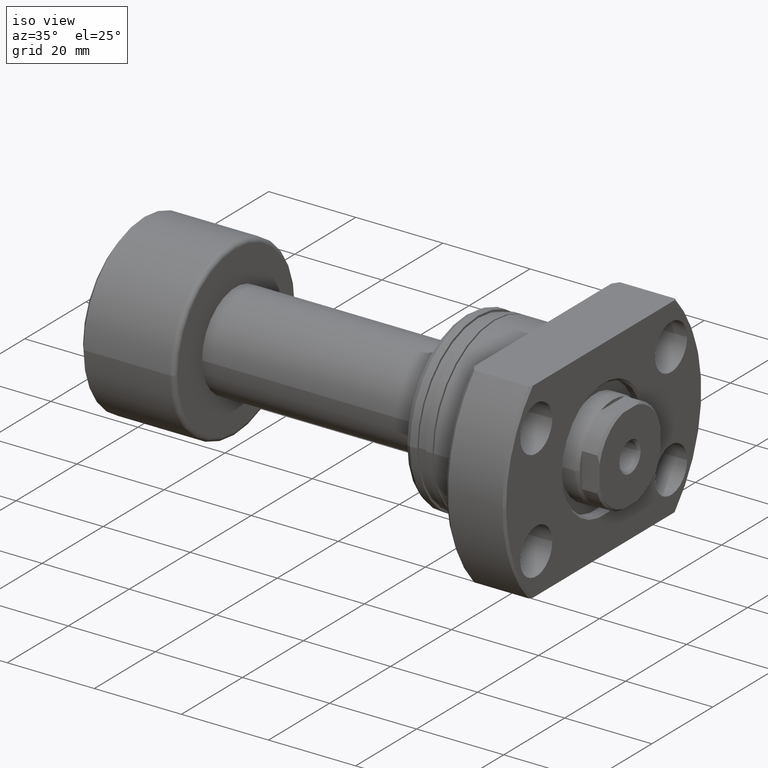
[diagram: clean part render]
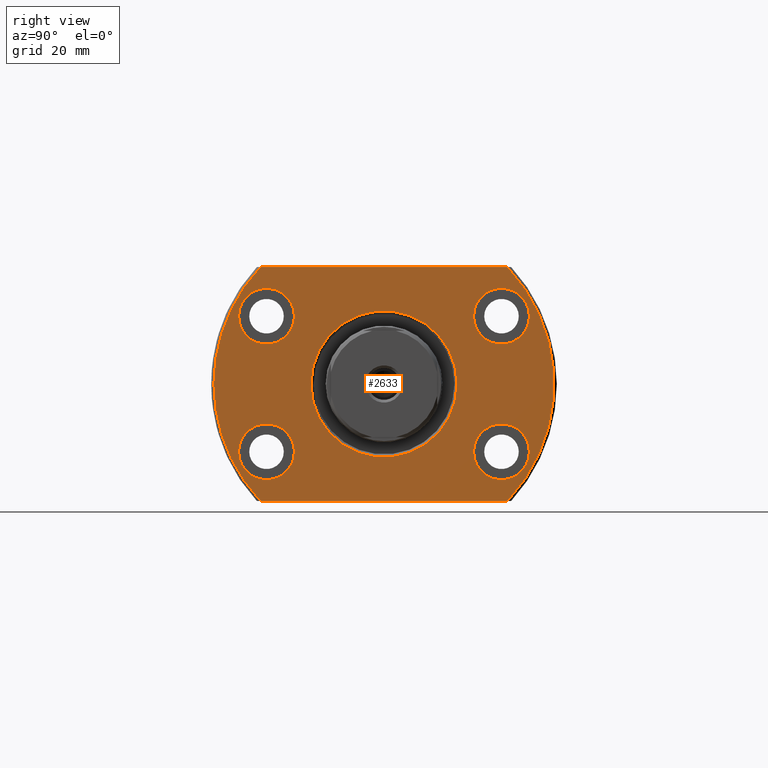
[diagram: tour spotlight — one face highlighted and labeled with its STEP entity id]
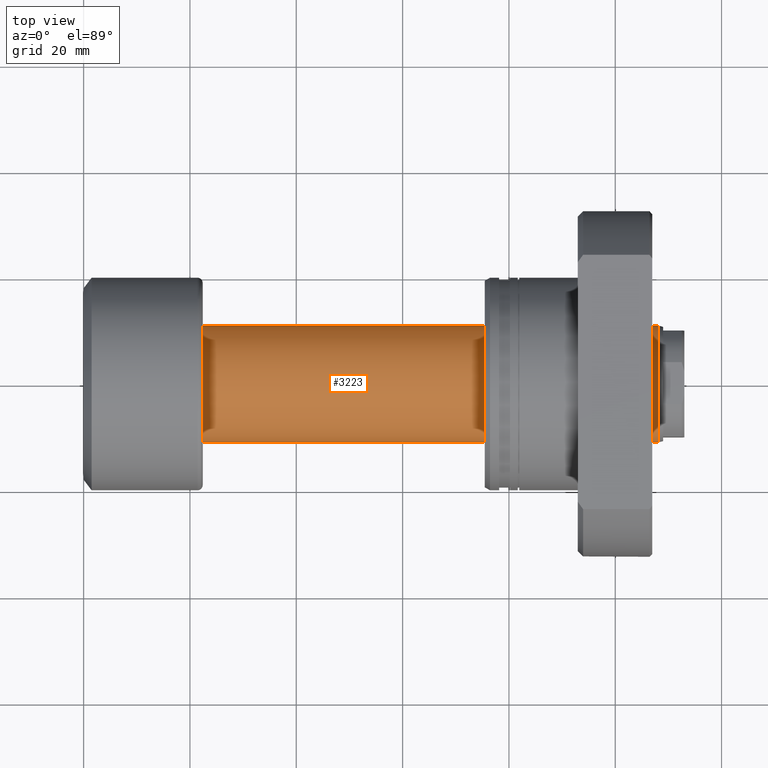
[diagram: tour spotlight — one face highlighted and labeled with its STEP entity id]
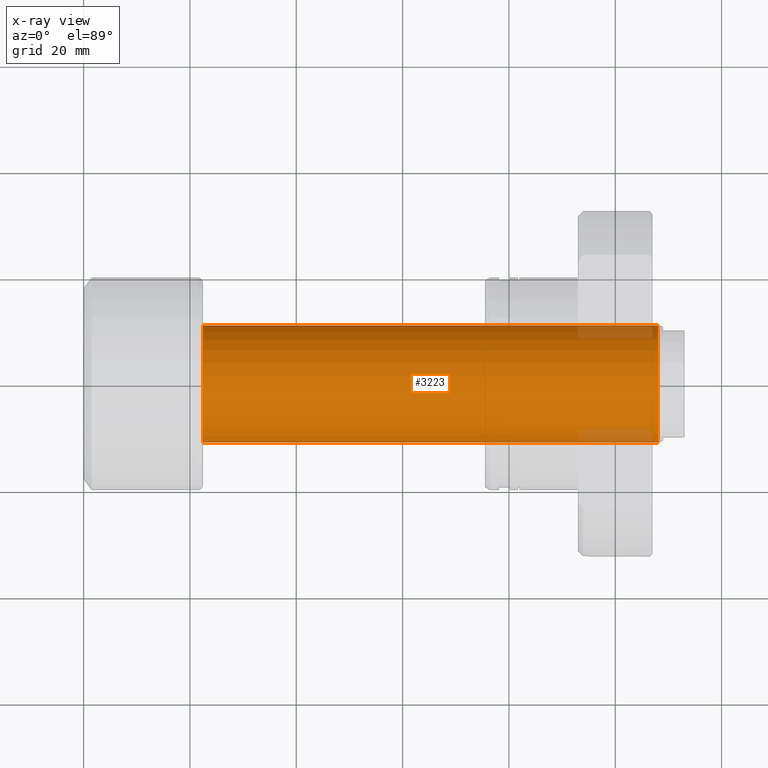
[diagram: x-ray of the same camera — body ghosted, this tour face saturated]
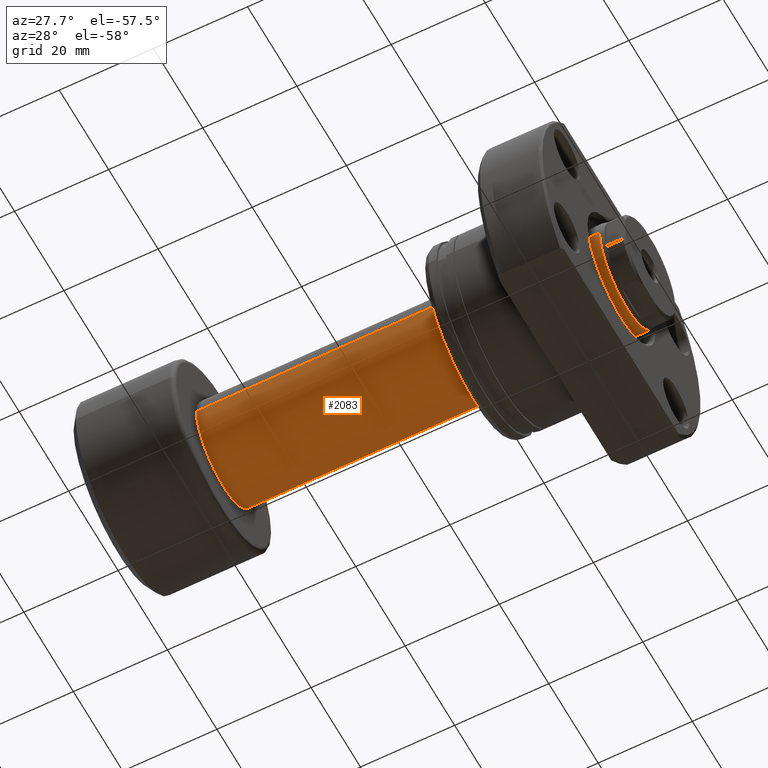
[diagram: tour spotlight — one face highlighted and labeled with its STEP entity id]
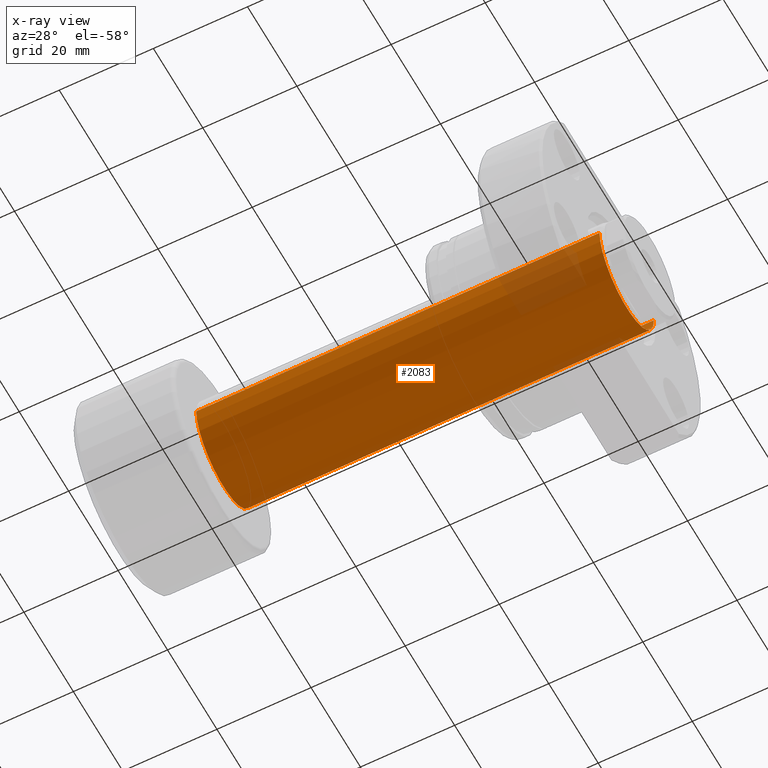
[diagram: x-ray of the same camera — body ghosted, this tour face saturated]
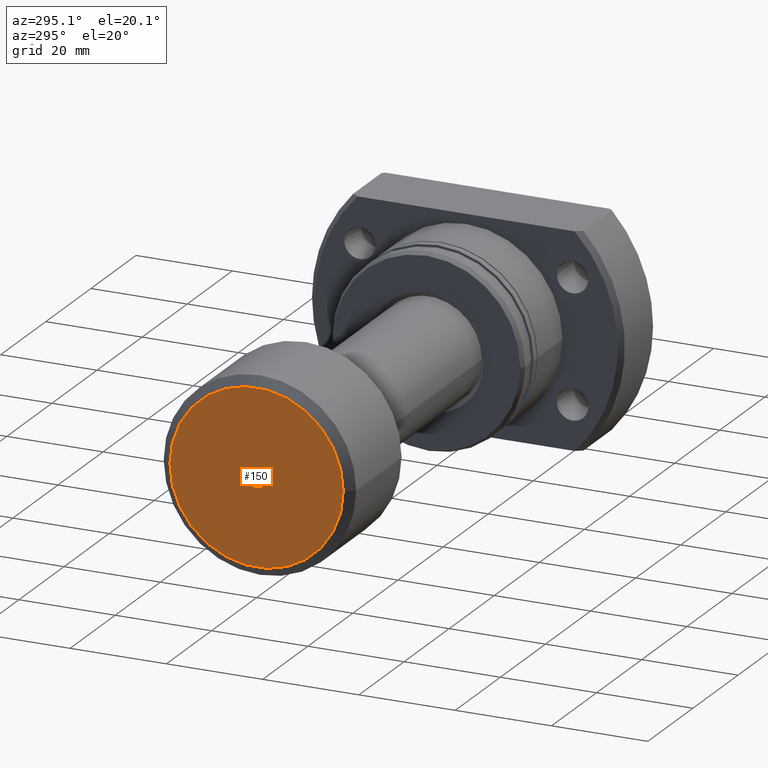
[diagram: tour spotlight — one face highlighted and labeled with its STEP entity id]
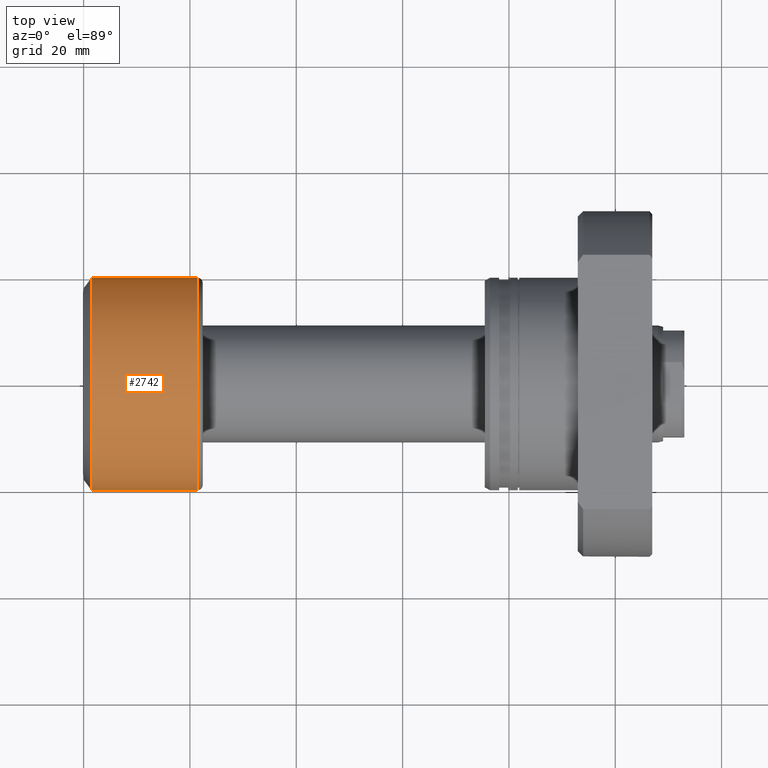
[diagram: tour spotlight — one face highlighted and labeled with its STEP entity id]
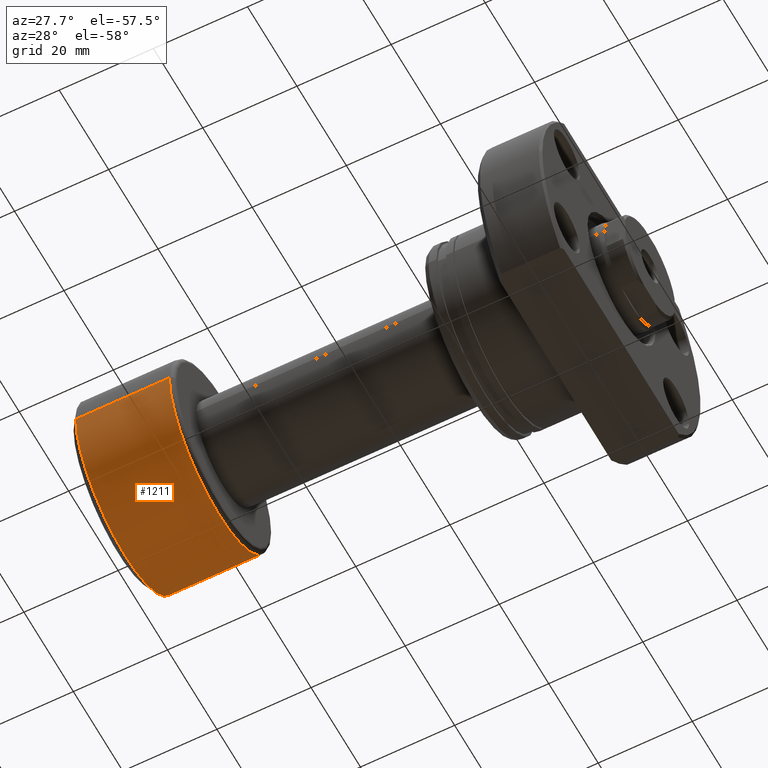
[diagram: tour spotlight — one face highlighted and labeled with its STEP entity id]
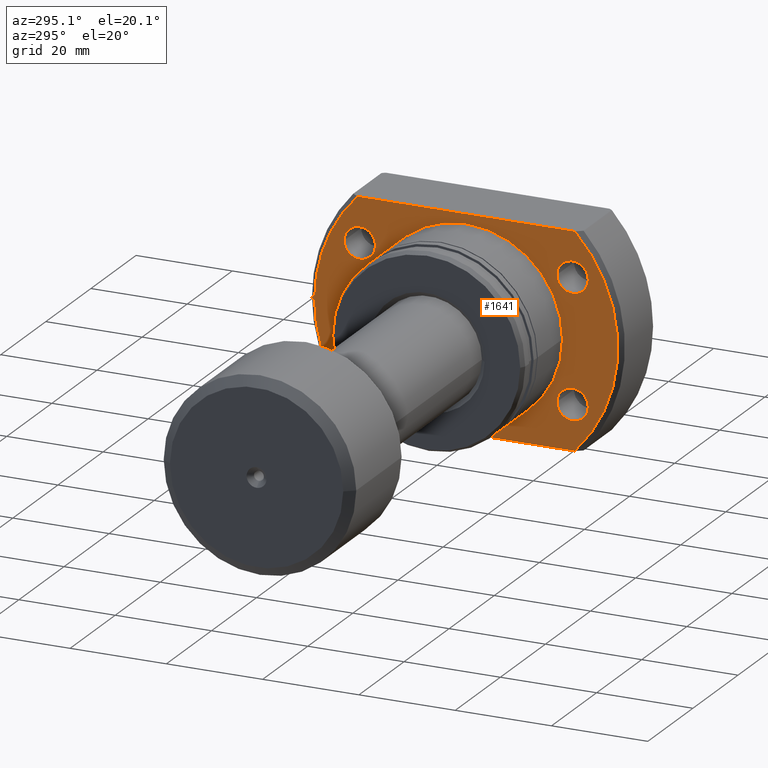
[diagram: tour spotlight — one face highlighted and labeled with its STEP entity id]
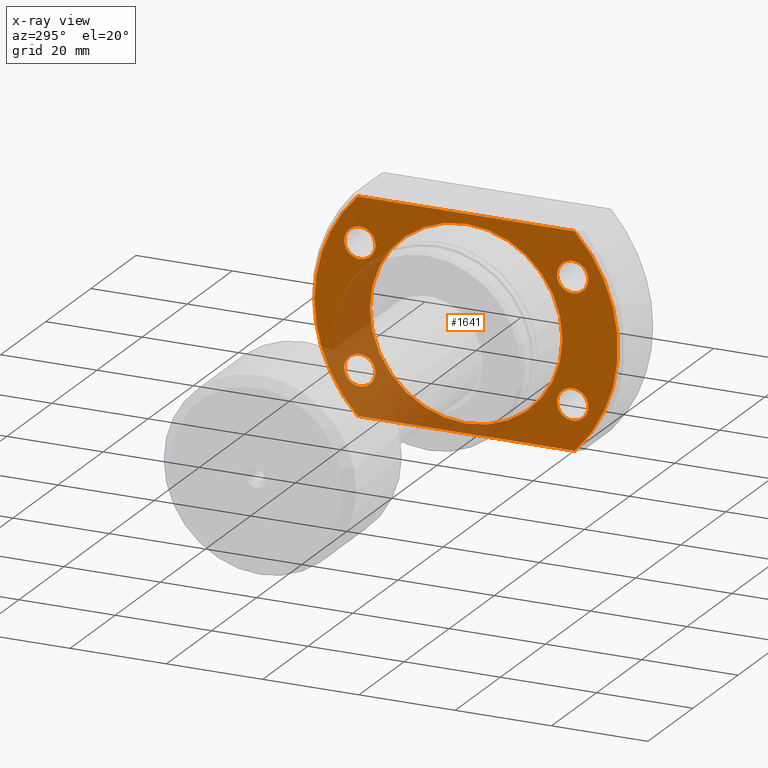
[diagram: x-ray of the same camera — body ghosted, this tour face saturated]
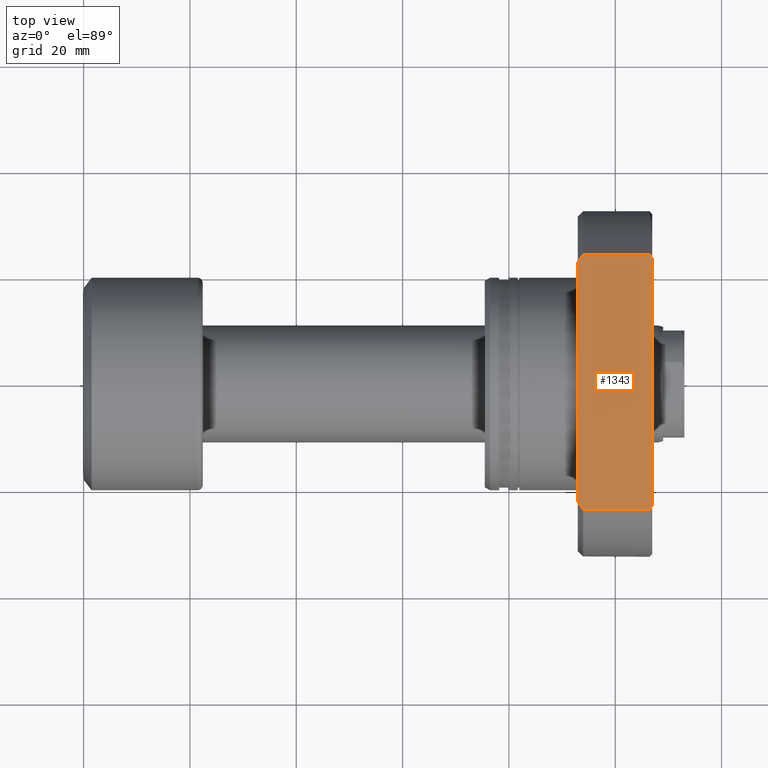
[diagram: tour spotlight — one face highlighted and labeled with its STEP entity id]
A machine part: a face-by-face anatomy tour. The part has 103 B-rep faces; the first image is the clean iso view, then the 8 largest visible faces are spotlighted one at a time (largest first), each with its STEP entity span.

Face 1 — right view, entity #2633. In plain terms, the highlighted planar face has unit normal (-1, -0, 0).
Definition (entity closure, byte-faithful):
#20 = CARTESIAN_POINT ( 'NONE',  ( 31.50000000000048672, 16.84999999999909193, 12.74999999999999822 ) ) ;
#26 = ORIENTED_EDGE ( 'NONE', *, *, #1067, .F. ) ;
#30 = EDGE_CURVE ( 'NONE', #141, #59, #115, .T. ) ;
#59 = VERTEX_POINT ( 'NONE', #2413 ) ;
#90 = CARTESIAN_POINT ( 'NONE',  ( 31.50000000000079226, 27.34999999999909548, 12.74999999999999822 ) ) ;
#93 = ORIENTED_EDGE ( 'NONE', *, *, #917, .F. ) ;
#107 = DIRECTION ( 'NONE',  ( -1.000000000000000000, -2.721437331438560389E-17, 0.000000000000000000 ) ) ;
#115 = CIRCLE ( 'NONE', #633, 5.250000000000000888 ) ;
#117 = EDGE_CURVE ( 'NONE', #3215, #1612, #2560, .T. ) ;
#119 = LINE ( 'NONE', #336, #2727 ) ;
#122 = CIRCLE ( 'NONE', #1635, 5.250000000000000888 ) ;
#141 = VERTEX_POINT ( 'NONE', #1834 ) ;
#144 = VERTEX_POINT ( 'NONE', #90 ) ;
#180 = DIRECTION ( 'NONE',  ( 0.000000000000000000, -1.000000000000000000, 0.000000000000000000 ) ) ;
#191 = CARTESIAN_POINT ( 'NONE',  ( 31.50000000000063949, 22.09999999999909193, 12.74999999999999822 ) ) ;
#246 = ORIENTED_EDGE ( 'NONE', *, *, #1189, .T. ) ;
#305 = ORIENTED_EDGE ( 'NONE', *, *, #1327, .F. ) ;
#314 = CARTESIAN_POINT ( 'NONE',  ( 31.49999999999936051, -22.10000000000091092, 12.74999999999999822 ) ) ;
#330 = ORIENTED_EDGE ( 'NONE', *, *, #388, .F. ) ;
#334 = CIRCLE ( 'NONE', #3038, 13.74999999999917577 ) ;
#336 = CARTESIAN_POINT ( 'NONE',  ( 31.50000000000000000, 23.92174742781217489, 22.00000000000000355 ) ) ;
#338 = FACE_BOUND ( 'NONE', #748, .T. ) ;
#372 = FACE_BOUND ( 'NONE', #526, .T. ) ;
#388 = EDGE_CURVE ( 'NONE', #59, #141, #1575, .T. ) ;
#389 = CIRCLE ( 'NONE', #2729, 5.250000000000000888 ) ;
#408 = CARTESIAN_POINT ( 'NONE',  ( 31.50000000000063949, 22.09999999999909193, 12.74999999999999822 ) ) ;
#431 = EDGE_CURVE ( 'NONE', #1155, #1323, #119, .T. ) ;
#489 = DIRECTION ( 'NONE',  ( 1.000000000000000000, -2.887798767815668620E-14, -6.310887241768094443E-30 ) ) ;
#493 = CARTESIAN_POINT ( 'NONE',  ( 31.50000000000000000, 13.74999999999826805, 0.000000000000000000 ) ) ;
#506 = DIRECTION ( 'NONE',  ( 2.907726969256361977E-14, 1.000000000000000000, 0.000000000000000000 ) ) ;
#520 = AXIS2_PLACEMENT_3D ( 'NONE', #797, #818, #1809 ) ;
#526 = EDGE_LOOP ( 'NONE', ( #1149, #246 ) ) ;
#544 = CIRCLE ( 'NONE', #1808, 5.250000000000000888 ) ;
#546 = CARTESIAN_POINT ( 'NONE',  ( 31.50000000000063949, 22.09999999999909193, -12.75000000000000178 ) ) ;
#549 = EDGE_CURVE ( 'NONE', #2028, #1323, #2210, .T. ) ;
#551 = ORIENTED_EDGE ( 'NONE', *, *, #1599, .T. ) ;
#627 = PLANE ( 'NONE',  #2194 ) ;
#633 = AXIS2_PLACEMENT_3D ( 'NONE', #314, #1309, #2306 ) ;
#731 = EDGE_LOOP ( 'NONE', ( #3150, #3060, #3002, #551, #1097 ) ) ;
#748 = EDGE_LOOP ( 'NONE', ( #2947, #1497 ) ) ;
#752 = CARTESIAN_POINT ( 'NONE',  ( 31.50000000000000000, 23.23790007724450035, -22.00000000000000355 ) ) ;
#758 = DIRECTION ( 'NONE',  ( 1.000000000000000000, -2.887798767815668620E-14, -6.310887241768094443E-30 ) ) ;
#797 = CARTESIAN_POINT ( 'NONE',  ( 31.50000000000000000, 8.572527594031465301E-16, 0.000000000000000000 ) ) ;
#818 = DIRECTION ( 'NONE',  ( 1.000000000000000000, 2.721437331438560389E-17, -0.000000000000000000 ) ) ;
#880 = FACE_BOUND ( 'NONE', #3112, .T. ) ;
#888 = EDGE_LOOP ( 'NONE', ( #330, #1657 ) ) ;
#898 = CARTESIAN_POINT ( 'NONE',  ( 31.49999999999936051, -22.10000000000091092, 12.74999999999999822 ) ) ;
#908 = CARTESIAN_POINT ( 'NONE',  ( 31.50000000000000000, -32.00000000000000000, -22.00000000000000355 ) ) ;
#917 = EDGE_CURVE ( 'NONE', #3062, #1869, #389, .T. ) ;
#971 = CIRCLE ( 'NONE', #2355, 5.250000000000000888 ) ;
#1001 = CARTESIAN_POINT ( 'NONE',  ( 31.49999999999936051, -22.10000000000091092, -12.75000000000000178 ) ) ;
#1067 = EDGE_CURVE ( 'NONE', #144, #2841, #544, .T. ) ;
#1097 = ORIENTED_EDGE ( 'NONE', *, *, #549, .T. ) ;
#1148 = CIRCLE ( 'NONE', #520, 32.00000000000000000 ) ;
#1149 = ORIENTED_EDGE ( 'NONE', *, *, #2426, .T. ) ;
#1155 = VERTEX_POINT ( 'NONE', #2789 ) ;
#1189 = EDGE_CURVE ( 'NONE', #3120, #2412, #334, .T. ) ;
#1255 = EDGE_CURVE ( 'NONE', #2841, #144, #122, .T. ) ;
#1309 = DIRECTION ( 'NONE',  ( 1.000000000000000000, -2.887798767815668620E-14, -6.310887241768094443E-30 ) ) ;
#1311 = DIRECTION ( 'NONE',  ( 1.000000000000000000, -2.887798767815668620E-14, -6.310887241768094443E-30 ) ) ;
#1321 = AXIS2_PLACEMENT_3D ( 'NONE', #546, #1311, #2793 ) ;
#1323 = VERTEX_POINT ( 'NONE', #2346 ) ;
#1327 = EDGE_CURVE ( 'NONE', #1869, #3062, #1957, .T. ) ;
#1340 = VERTEX_POINT ( 'NONE', #2331 ) ;
#1359 = FACE_BOUND ( 'NONE', #888, .T. ) ;
#1393 = DIRECTION ( 'NONE',  ( 1.000000000000000000, -2.886466111666351885E-14, 0.000000000000000000 ) ) ;
#1398 = EDGE_LOOP ( 'NONE', ( #93, #305 ) ) ;
#1470 = AXIS2_PLACEMENT_3D ( 'NONE', #1512, #489, #2511 ) ;
#1497 = ORIENTED_EDGE ( 'NONE', *, *, #1856, .F. ) ;
#1503 = DIRECTION ( 'NONE',  ( 0.000000000000000000, -1.000000000000000000, 0.000000000000000000 ) ) ;
#1511 = CIRCLE ( 'NONE', #3065, 13.74999999999917577 ) ;
#1512 = CARTESIAN_POINT ( 'NONE',  ( 31.49999999999936051, -22.10000000000091092, -12.75000000000000178 ) ) ;
#1544 = DIRECTION ( 'NONE',  ( 0.000000000000000000, 1.000000000000000000, 0.000000000000000000 ) ) ;
#1555 = DIRECTION ( 'NONE',  ( -0.000000000000000000, 1.000000000000000000, 0.000000000000000000 ) ) ;
#1575 = CIRCLE ( 'NONE', #2268, 5.250000000000000888 ) ;
#1599 = EDGE_CURVE ( 'NONE', #1612, #2028, #3128, .T. ) ;
#1612 = VERTEX_POINT ( 'NONE', #1653 ) ;
#1628 = CARTESIAN_POINT ( 'NONE',  ( 31.50000000000000000, -32.00000000000000000, 0.000000000000000000 ) ) ;
#1635 = AXIS2_PLACEMENT_3D ( 'NONE', #408, #1393, #506 ) ;
#1653 = CARTESIAN_POINT ( 'NONE',  ( 31.50000000000000000, -23.23790007724450035, -22.00000000000000355 ) ) ;
#1657 = ORIENTED_EDGE ( 'NONE', *, *, #30, .F. ) ;
#1698 = DIRECTION ( 'NONE',  ( 2.907726969256361977E-14, 1.000000000000000000, 0.000000000000000000 ) ) ;
#1743 = DIRECTION ( 'NONE',  ( -1.000000000000000000, -2.721437331438560389E-17, 0.000000000000000000 ) ) ;
#1786 = DIRECTION ( 'NONE',  ( 2.907726969256361977E-14, 1.000000000000000000, 0.000000000000000000 ) ) ;
#1808 = AXIS2_PLACEMENT_3D ( 'NONE', #191, #2922, #1698 ) ;
#1809 = DIRECTION ( 'NONE',  ( 0.000000000000000000, 1.000000000000000000, 0.000000000000000000 ) ) ;
#1834 = CARTESIAN_POINT ( 'NONE',  ( 31.49999999999920774, -27.35000000000091092, 12.74999999999999822 ) ) ;
#1856 = EDGE_CURVE ( 'NONE', #1340, #1944, #971, .T. ) ;
#1869 = VERTEX_POINT ( 'NONE', #2199 ) ;
#1908 = DIRECTION ( 'NONE',  ( 1.000000000000000000, 2.721437331438560389E-17, -0.000000000000000000 ) ) ;
#1921 = DIRECTION ( 'NONE',  ( 0.000000000000000000, 1.000000000000000000, 0.000000000000000000 ) ) ;
#1941 = CARTESIAN_POINT ( 'NONE',  ( 31.50000000000063949, 22.09999999999909193, -12.75000000000000178 ) ) ;
#1944 = VERTEX_POINT ( 'NONE', #2589 ) ;
#1957 = CIRCLE ( 'NONE', #1321, 5.250000000000000888 ) ;
#1968 = CARTESIAN_POINT ( 'NONE',  ( 31.50000000000000000, -13.75000000000088107, 1.683889348827607301E-15 ) ) ;
#1990 = DIRECTION ( 'NONE',  ( 1.000000000000000000, -2.887798767815668620E-14, -6.310887241768094443E-30 ) ) ;
#2028 = VERTEX_POINT ( 'NONE', #752 ) ;
#2074 = FACE_BOUND ( 'NONE', #1398, .T. ) ;
#2177 = DIRECTION ( 'NONE',  ( 2.907726969256361977E-14, 1.000000000000000000, 0.000000000000000000 ) ) ;
#2194 = AXIS2_PLACEMENT_3D ( 'NONE', #1628, #107, #2615 ) ;
#2199 = CARTESIAN_POINT ( 'NONE',  ( 31.50000000000048672, 16.84999999999909193, -12.75000000000000178 ) ) ;
#2210 = CIRCLE ( 'NONE', #2356, 32.00000000000000000 ) ;
#2246 = CIRCLE ( 'NONE', #1470, 5.250000000000000888 ) ;
#2268 = AXIS2_PLACEMENT_3D ( 'NONE', #898, #2669, #1786 ) ;
#2306 = DIRECTION ( 'NONE',  ( 2.907726969256361977E-14, 1.000000000000000000, 0.000000000000000000 ) ) ;
#2331 = CARTESIAN_POINT ( 'NONE',  ( 31.49999999999920774, -27.35000000000091092, -12.75000000000000178 ) ) ;
#2346 = CARTESIAN_POINT ( 'NONE',  ( 31.50000000000000000, 23.23790007724450035, 22.00000000000000355 ) ) ;
#2348 = DIRECTION ( 'NONE',  ( -2.721437331438560389E-17, 1.000000000000000000, -0.000000000000000000 ) ) ;
#2353 = CARTESIAN_POINT ( 'NONE',  ( 31.50000000000000000, 8.572527594031465301E-16, 0.000000000000000000 ) ) ;
#2355 = AXIS2_PLACEMENT_3D ( 'NONE', #1001, #1990, #2177 ) ;
#2356 = AXIS2_PLACEMENT_3D ( 'NONE', #2440, #1908, #1921 ) ;
#2412 = VERTEX_POINT ( 'NONE', #493 ) ;
#2413 = CARTESIAN_POINT ( 'NONE',  ( 31.49999999999951328, -16.85000000000091092, 12.74999999999999822 ) ) ;
#2426 = EDGE_CURVE ( 'NONE', #2412, #3120, #1511, .T. ) ;
#2440 = CARTESIAN_POINT ( 'NONE',  ( 31.50000000000000000, 8.572527594031465301E-16, 0.000000000000000000 ) ) ;
#2489 = EDGE_CURVE ( 'NONE', #1155, #3215, #1148, .T. ) ;
#2511 = DIRECTION ( 'NONE',  ( 2.907726969256361977E-14, 1.000000000000000000, 0.000000000000000000 ) ) ;
#2536 = DIRECTION ( 'NONE',  ( 1.000000000000000000, 2.721437331438560389E-17, -0.000000000000000000 ) ) ;
#2560 = CIRCLE ( 'NONE', #3194, 32.00000000000000000 ) ;
#2589 = CARTESIAN_POINT ( 'NONE',  ( 31.49999999999951328, -16.85000000000091092, -12.75000000000000178 ) ) ;
#2599 = CARTESIAN_POINT ( 'NONE',  ( 31.50000000000000000, -9.092368251749008943E-13, 0.000000000000000000 ) ) ;
#2615 = DIRECTION ( 'NONE',  ( 2.721437331438560389E-17, -1.000000000000000000, 0.000000000000000000 ) ) ;
#2633 = ADVANCED_FACE ( 'NONE', ( #372, #880, #1359, #338, #2074, #3057 ), #627, .F. ) ;
#2669 = DIRECTION ( 'NONE',  ( 1.000000000000000000, -2.887798767815668620E-14, -6.310887241768094443E-30 ) ) ;
#2698 = CARTESIAN_POINT ( 'NONE',  ( 31.50000000000000000, -32.00000000000000000, 0.000000000000000000 ) ) ;
#2727 = VECTOR ( 'NONE', #1555, 1000.000000000000000 ) ;
#2729 = AXIS2_PLACEMENT_3D ( 'NONE', #1941, #758, #2925 ) ;
#2741 = CARTESIAN_POINT ( 'NONE',  ( 31.50000000000000000, -9.092368251749008943E-13, 0.000000000000000000 ) ) ;
#2789 = CARTESIAN_POINT ( 'NONE',  ( 31.50000000000000000, -23.23790007724449680, 22.00000000000000355 ) ) ;
#2793 = DIRECTION ( 'NONE',  ( 2.907726969256361977E-14, 1.000000000000000000, 0.000000000000000000 ) ) ;
#2840 = ORIENTED_EDGE ( 'NONE', *, *, #1255, .F. ) ;
#2841 = VERTEX_POINT ( 'NONE', #20 ) ;
#2922 = DIRECTION ( 'NONE',  ( 1.000000000000000000, -2.886466111666351885E-14, 0.000000000000000000 ) ) ;
#2924 = EDGE_CURVE ( 'NONE', #1944, #1340, #2246, .T. ) ;
#2925 = DIRECTION ( 'NONE',  ( 2.907726969256361977E-14, 1.000000000000000000, 0.000000000000000000 ) ) ;
#2947 = ORIENTED_EDGE ( 'NONE', *, *, #2924, .F. ) ;
#3002 = ORIENTED_EDGE ( 'NONE', *, *, #117, .T. ) ;
#3038 = AXIS2_PLACEMENT_3D ( 'NONE', #2599, #3117, #180 ) ;
#3057 = FACE_OUTER_BOUND ( 'NONE', #731, .T. ) ;
#3060 = ORIENTED_EDGE ( 'NONE', *, *, #2489, .T. ) ;
#3062 = VERTEX_POINT ( 'NONE', #3151 ) ;
#3065 = AXIS2_PLACEMENT_3D ( 'NONE', #2741, #1743, #1503 ) ;
#3112 = EDGE_LOOP ( 'NONE', ( #26, #2840 ) ) ;
#3117 = DIRECTION ( 'NONE',  ( -1.000000000000000000, -2.721437331438560389E-17, 0.000000000000000000 ) ) ;
#3120 = VERTEX_POINT ( 'NONE', #1968 ) ;
#3128 = LINE ( 'NONE', #908, #3144 ) ;
#3144 = VECTOR ( 'NONE', #2348, 1000.000000000000000 ) ;
#3150 = ORIENTED_EDGE ( 'NONE', *, *, #431, .F. ) ;
#3151 = CARTESIAN_POINT ( 'NONE',  ( 31.50000000000079226, 27.34999999999909548, -12.75000000000000178 ) ) ;
#3194 = AXIS2_PLACEMENT_3D ( 'NONE', #2353, #2536, #1544 ) ;
#3215 = VERTEX_POINT ( 'NONE', #2698 ) ;

Face 2 — top view, entity #3223. An x-ray twin of the same camera follows (body ghosted, this face saturated) — the face is partly hidden behind the body. In plain terms, the highlighted cylindrical surface (partial cylindrical patch) has radius 11 mm, axis along (-1, -0, -0).
Definition (entity closure, byte-faithful):
#10 = DIRECTION ( 'NONE',  ( -1.000000000000000000, -1.069542322069065801E-17, -0.000000000000000000 ) ) ;
#65 = CIRCLE ( 'NONE', #1316, 11.00000000000019185 ) ;
#109 = CARTESIAN_POINT ( 'NONE',  ( 22.39999999999999503, 2.395774801434707246E-16, 0.000000000000000000 ) ) ;
#206 = CARTESIAN_POINT ( 'NONE',  ( 22.39999999999999503, 11.00000000000000000, 1.347111479062094321E-15 ) ) ;
#238 = DIRECTION ( 'NONE',  ( -1.000000000000000000, -1.069542322069065801E-17, -0.000000000000000000 ) ) ;
#329 = EDGE_CURVE ( 'NONE', #2778, #3160, #857, .T. ) ;
#387 = DIRECTION ( 'NONE',  ( 0.000000000000000000, -1.000000000000000000, 0.000000000000000000 ) ) ;
#404 = CARTESIAN_POINT ( 'NONE',  ( 22.39999999999999503, -11.00000000000000000, 0.000000000000000000 ) ) ;
#528 = EDGE_CURVE ( 'NONE', #1813, #1442, #65, .T. ) ;
#623 = CARTESIAN_POINT ( 'NONE',  ( 108.0667575123237754, 1.155819707682054471E-15, 0.000000000000000000 ) ) ;
#709 = CARTESIAN_POINT ( 'NONE',  ( 108.0667575123237754, 11.00000000000019362, 1.347111479062112268E-15 ) ) ;
#745 = AXIS2_PLACEMENT_3D ( 'NONE', #1424, #10, #1445 ) ;
#747 = CARTESIAN_POINT ( 'NONE',  ( -1.176496554275982688E-16, 11.00000000000009592, 1.347111479062100435E-15 ) ) ;
#857 = CIRCLE ( 'NONE', #2055, 11.00000000000000000 ) ;
#926 = CARTESIAN_POINT ( 'NONE',  ( 1.176496554275982688E-16, -11.00000000000009592, 0.000000000000000000 ) ) ;
#1087 = EDGE_LOOP ( 'NONE', ( #2024, #1618, #2578, #2655 ) ) ;
#1233 = DIRECTION ( 'NONE',  ( 0.000000000000000000, -1.000000000000000000, 0.000000000000000000 ) ) ;
#1316 = AXIS2_PLACEMENT_3D ( 'NONE', #623, #1623, #387 ) ;
#1424 = CARTESIAN_POINT ( 'NONE',  ( 0.000000000000000000, 0.000000000000000000, 0.000000000000000000 ) ) ;
#1442 = VERTEX_POINT ( 'NONE', #709 ) ;
#1445 = DIRECTION ( 'NONE',  ( 1.069542322069065801E-17, -1.000000000000000000, 0.000000000000000000 ) ) ;
#1519 = EDGE_CURVE ( 'NONE', #1813, #2778, #3149, .T. ) ;
#1533 = LINE ( 'NONE', #747, #1669 ) ;
#1618 = ORIENTED_EDGE ( 'NONE', *, *, #2522, .T. ) ;
#1623 = DIRECTION ( 'NONE',  ( -1.000000000000000000, -1.069542322069065801E-17, -0.000000000000000000 ) ) ;
#1669 = VECTOR ( 'NONE', #2526, 1000.000000000000000 ) ;
#1813 = VERTEX_POINT ( 'NONE', #2790 ) ;
#2024 = ORIENTED_EDGE ( 'NONE', *, *, #528, .T. ) ;
#2055 = AXIS2_PLACEMENT_3D ( 'NONE', #109, #238, #1233 ) ;
#2196 = FACE_OUTER_BOUND ( 'NONE', #1087, .T. ) ;
#2241 = CYLINDRICAL_SURFACE ( 'NONE', #745, 11.00000000000009592 ) ;
#2316 = VECTOR ( 'NONE', #2415, 1000.000000000000000 ) ;
#2415 = DIRECTION ( 'NONE',  ( -1.000000000000000000, -1.069542322069065801E-17, -0.000000000000000000 ) ) ;
#2522 = EDGE_CURVE ( 'NONE', #1442, #3160, #1533, .T. ) ;
#2526 = DIRECTION ( 'NONE',  ( -1.000000000000000000, -1.069542322069065801E-17, -0.000000000000000000 ) ) ;
#2578 = ORIENTED_EDGE ( 'NONE', *, *, #329, .F. ) ;
#2655 = ORIENTED_EDGE ( 'NONE', *, *, #1519, .F. ) ;
#2778 = VERTEX_POINT ( 'NONE', #404 ) ;
#2790 = CARTESIAN_POINT ( 'NONE',  ( 108.0667575123237754, -11.00000000000019007, 0.000000000000000000 ) ) ;
#3149 = LINE ( 'NONE', #926, #2316 ) ;
#3160 = VERTEX_POINT ( 'NONE', #206 ) ;
#3223 = ADVANCED_FACE ( 'NONE', ( #2196 ), #2241, .T. ) ;

Face 3 — auxiliary view, entity #2083. An x-ray twin of the same camera follows (body ghosted, this face saturated) — the face is partly hidden behind the body. In plain terms, the highlighted cylindrical surface (partial cylindrical patch) has radius 11 mm, axis along (-1, -0, -0).
Definition (entity closure, byte-faithful):
#206 = CARTESIAN_POINT ( 'NONE',  ( 22.39999999999999503, 11.00000000000000000, 1.347111479062094321E-15 ) ) ;
#279 = CARTESIAN_POINT ( 'NONE',  ( 0.000000000000000000, 0.000000000000000000, 0.000000000000000000 ) ) ;
#380 = ORIENTED_EDGE ( 'NONE', *, *, #2522, .F. ) ;
#404 = CARTESIAN_POINT ( 'NONE',  ( 22.39999999999999503, -11.00000000000000000, 0.000000000000000000 ) ) ;
#457 = EDGE_CURVE ( 'NONE', #1442, #1813, #2519, .T. ) ;
#468 = AXIS2_PLACEMENT_3D ( 'NONE', #279, #527, #1524 ) ;
#513 = FACE_OUTER_BOUND ( 'NONE', #1145, .T. ) ;
#527 = DIRECTION ( 'NONE',  ( -1.000000000000000000, -1.069542322069065801E-17, -0.000000000000000000 ) ) ;
#641 = AXIS2_PLACEMENT_3D ( 'NONE', #1890, #2874, #1137 ) ;
#663 = EDGE_CURVE ( 'NONE', #3160, #2778, #2472, .T. ) ;
#709 = CARTESIAN_POINT ( 'NONE',  ( 108.0667575123237754, 11.00000000000019362, 1.347111479062112268E-15 ) ) ;
#747 = CARTESIAN_POINT ( 'NONE',  ( -1.176496554275982688E-16, 11.00000000000009592, 1.347111479062100435E-15 ) ) ;
#884 = ORIENTED_EDGE ( 'NONE', *, *, #1519, .T. ) ;
#926 = CARTESIAN_POINT ( 'NONE',  ( 1.176496554275982688E-16, -11.00000000000009592, 0.000000000000000000 ) ) ;
#1090 = CARTESIAN_POINT ( 'NONE',  ( 108.0667575123237754, 1.155819707682054471E-15, 0.000000000000000000 ) ) ;
#1137 = DIRECTION ( 'NONE',  ( 0.000000000000000000, -1.000000000000000000, 0.000000000000000000 ) ) ;
#1145 = EDGE_LOOP ( 'NONE', ( #380, #2573, #884, #1803 ) ) ;
#1276 = AXIS2_PLACEMENT_3D ( 'NONE', #1090, #1329, #3067 ) ;
#1329 = DIRECTION ( 'NONE',  ( -1.000000000000000000, -1.069542322069065801E-17, -0.000000000000000000 ) ) ;
#1442 = VERTEX_POINT ( 'NONE', #709 ) ;
#1519 = EDGE_CURVE ( 'NONE', #1813, #2778, #3149, .T. ) ;
#1524 = DIRECTION ( 'NONE',  ( 1.069542322069065801E-17, -1.000000000000000000, 0.000000000000000000 ) ) ;
#1533 = LINE ( 'NONE', #747, #1669 ) ;
#1669 = VECTOR ( 'NONE', #2526, 1000.000000000000000 ) ;
#1803 = ORIENTED_EDGE ( 'NONE', *, *, #663, .F. ) ;
#1813 = VERTEX_POINT ( 'NONE', #2790 ) ;
#1890 = CARTESIAN_POINT ( 'NONE',  ( 22.39999999999999503, 2.395774801434707246E-16, 0.000000000000000000 ) ) ;
#2083 = ADVANCED_FACE ( 'NONE', ( #513 ), #2506, .T. ) ;
#2316 = VECTOR ( 'NONE', #2415, 1000.000000000000000 ) ;
#2415 = DIRECTION ( 'NONE',  ( -1.000000000000000000, -1.069542322069065801E-17, -0.000000000000000000 ) ) ;
#2472 = CIRCLE ( 'NONE', #641, 11.00000000000000000 ) ;
#2506 = CYLINDRICAL_SURFACE ( 'NONE', #468, 11.00000000000009592 ) ;
#2519 = CIRCLE ( 'NONE', #1276, 11.00000000000019185 ) ;
#2522 = EDGE_CURVE ( 'NONE', #1442, #3160, #1533, .T. ) ;
#2526 = DIRECTION ( 'NONE',  ( -1.000000000000000000, -1.069542322069065801E-17, -0.000000000000000000 ) ) ;
#2573 = ORIENTED_EDGE ( 'NONE', *, *, #457, .T. ) ;
#2778 = VERTEX_POINT ( 'NONE', #404 ) ;
#2790 = CARTESIAN_POINT ( 'NONE',  ( 108.0667575123237754, -11.00000000000019007, 0.000000000000000000 ) ) ;
#2874 = DIRECTION ( 'NONE',  ( -1.000000000000000000, -1.069542322069065801E-17, -0.000000000000000000 ) ) ;
#3067 = DIRECTION ( 'NONE',  ( 0.000000000000000000, -1.000000000000000000, 0.000000000000000000 ) ) ;
#3149 = LINE ( 'NONE', #926, #2316 ) ;
#3160 = VERTEX_POINT ( 'NONE', #206 ) ;

Face 4 — auxiliary view, entity #150. In plain terms, the highlighted planar face has unit normal (-1, -0, 0).
Definition (entity closure, byte-faithful):
#61 = AXIS2_PLACEMENT_3D ( 'NONE', #540, #3029, #3058 ) ;
#102 = VERTEX_POINT ( 'NONE', #2748 ) ;
#150 = ADVANCED_FACE ( 'NONE', ( #1091, #879 ), #1320, .T. ) ;
#322 = EDGE_CURVE ( 'NONE', #776, #102, #2467, .T. ) ;
#396 = DIRECTION ( 'NONE',  ( 1.069542322069061487E-17, -1.000000000000000000, 0.000000000000000000 ) ) ;
#451 = CARTESIAN_POINT ( 'NONE',  ( 2.011846620492804129E-15, 2.151755106128676308E-32, 0.000000000000000000 ) ) ;
#540 = CARTESIAN_POINT ( 'NONE',  ( 1.005923310246402065E-15, 1.075877553064338154E-32, 0.000000000000000000 ) ) ;
#589 = CIRCLE ( 'NONE', #766, 2.075000000000007283 ) ;
#631 = VERTEX_POINT ( 'NONE', #717 ) ;
#717 = CARTESIAN_POINT ( 'NONE',  ( 1.819329002520372041E-15, 18.00000000000000355, 0.000000000000000000 ) ) ;
#741 = DIRECTION ( 'NONE',  ( -1.000000000000000000, -1.069542322069065801E-17, -0.000000000000000000 ) ) ;
#766 = AXIS2_PLACEMENT_3D ( 'NONE', #1778, #1764, #1213 ) ;
#776 = VERTEX_POINT ( 'NONE', #1731 ) ;
#867 = AXIS2_PLACEMENT_3D ( 'NONE', #451, #2213, #2171 ) ;
#879 = FACE_OUTER_BOUND ( 'NONE', #1480, .T. ) ;
#1059 = VERTEX_POINT ( 'NONE', #3220 ) ;
#1091 = FACE_BOUND ( 'NONE', #2933, .T. ) ;
#1187 = ORIENTED_EDGE ( 'NONE', *, *, #322, .T. ) ;
#1213 = DIRECTION ( 'NONE',  ( 1.069542322069061487E-17, -1.000000000000000000, 0.000000000000000000 ) ) ;
#1320 = PLANE ( 'NONE',  #61 ) ;
#1353 = AXIS2_PLACEMENT_3D ( 'NONE', #2957, #741, #1487 ) ;
#1404 = EDGE_CURVE ( 'NONE', #102, #776, #589, .T. ) ;
#1480 = EDGE_LOOP ( 'NONE', ( #2913, #2547 ) ) ;
#1487 = DIRECTION ( 'NONE',  ( 1.069542322069065647E-17, -1.000000000000000000, 0.000000000000000000 ) ) ;
#1540 = EDGE_CURVE ( 'NONE', #1059, #631, #2734, .T. ) ;
#1731 = CARTESIAN_POINT ( 'NONE',  ( 1.005923310246402065E-15, 0.000000000000000000, 2.075000000000007283 ) ) ;
#1736 = ORIENTED_EDGE ( 'NONE', *, *, #1404, .T. ) ;
#1764 = DIRECTION ( 'NONE',  ( 1.000000000000000000, 1.069542322069065801E-17, 0.000000000000000000 ) ) ;
#1778 = CARTESIAN_POINT ( 'NONE',  ( 1.005923310246402065E-15, 0.000000000000000000, 0.000000000000000000 ) ) ;
#1925 = CARTESIAN_POINT ( 'NONE',  ( 1.005923310246402065E-15, 0.000000000000000000, 0.000000000000000000 ) ) ;
#2171 = DIRECTION ( 'NONE',  ( 1.069542322069065647E-17, -1.000000000000000000, 0.000000000000000000 ) ) ;
#2213 = DIRECTION ( 'NONE',  ( -1.000000000000000000, -1.069542322069065801E-17, -0.000000000000000000 ) ) ;
#2467 = CIRCLE ( 'NONE', #3086, 2.075000000000007283 ) ;
#2547 = ORIENTED_EDGE ( 'NONE', *, *, #1540, .T. ) ;
#2670 = DIRECTION ( 'NONE',  ( 1.000000000000000000, 1.069542322069065801E-17, 0.000000000000000000 ) ) ;
#2734 = CIRCLE ( 'NONE', #867, 18.00000000000000355 ) ;
#2748 = CARTESIAN_POINT ( 'NONE',  ( 1.005923310246402065E-15, 2.541142108230766946E-16, -2.075000000000007283 ) ) ;
#2811 = CIRCLE ( 'NONE', #1353, 18.00000000000000355 ) ;
#2913 = ORIENTED_EDGE ( 'NONE', *, *, #2969, .T. ) ;
#2933 = EDGE_LOOP ( 'NONE', ( #1187, #1736 ) ) ;
#2957 = CARTESIAN_POINT ( 'NONE',  ( 2.011846620492804129E-15, 2.151755106128676308E-32, 0.000000000000000000 ) ) ;
#2969 = EDGE_CURVE ( 'NONE', #631, #1059, #2811, .T. ) ;
#3029 = DIRECTION ( 'NONE',  ( -1.000000000000000000, -1.069542322069065801E-17, 0.000000000000000000 ) ) ;
#3058 = DIRECTION ( 'NONE',  ( 1.069542322069065801E-17, -1.000000000000000000, 0.000000000000000000 ) ) ;
#3086 = AXIS2_PLACEMENT_3D ( 'NONE', #1925, #2670, #396 ) ;
#3220 = CARTESIAN_POINT ( 'NONE',  ( 2.204364238465235822E-15, -18.00000000000000355, 2.326828918379971365E-15 ) ) ;

Face 5 — top view, entity #2742. In plain terms, the highlighted cylindrical surface (partial cylindrical patch) has radius 20 mm, axis along (-1, -0, -0).
Definition (entity closure, byte-faithful):
#43 = CARTESIAN_POINT ( 'NONE',  ( 2.139084644138131786E-16, -20.00000000000000000, 0.000000000000000000 ) ) ;
#70 = ORIENTED_EDGE ( 'NONE', *, *, #3087, .T. ) ;
#157 = VERTEX_POINT ( 'NONE', #2027 ) ;
#193 = ORIENTED_EDGE ( 'NONE', *, *, #1679, .T. ) ;
#323 = CARTESIAN_POINT ( 'NONE',  ( 1.500000000000002442, 20.00000000000000000, 0.000000000000000000 ) ) ;
#531 = DIRECTION ( 'NONE',  ( -1.000000000000000000, -1.069542322069065801E-17, -0.000000000000000000 ) ) ;
#573 = AXIS2_PLACEMENT_3D ( 'NONE', #639, #1639, #1315 ) ;
#639 = CARTESIAN_POINT ( 'NONE',  ( 21.39999999999999503, 2.288820569227800311E-16, 0.000000000000000000 ) ) ;
#653 = VERTEX_POINT ( 'NONE', #3153 ) ;
#661 = EDGE_LOOP ( 'NONE', ( #70, #193, #1112, #2283 ) ) ;
#690 = DIRECTION ( 'NONE',  ( -1.000000000000000000, -1.069542322069065801E-17, -0.000000000000000000 ) ) ;
#714 = DIRECTION ( 'NONE',  ( 1.084202172485504434E-17, -1.000000000000000000, 0.000000000000000000 ) ) ;
#956 = AXIS2_PLACEMENT_3D ( 'NONE', #2668, #1658, #1924 ) ;
#958 = FACE_OUTER_BOUND ( 'NONE', #661, .T. ) ;
#1112 = ORIENTED_EDGE ( 'NONE', *, *, #1777, .F. ) ;
#1140 = CYLINDRICAL_SURFACE ( 'NONE', #956, 20.00000000000000000 ) ;
#1199 = CARTESIAN_POINT ( 'NONE',  ( 1.500000000000002442, 1.604313483103601552E-17, 0.000000000000000000 ) ) ;
#1264 = LINE ( 'NONE', #43, #2294 ) ;
#1315 = DIRECTION ( 'NONE',  ( 0.000000000000000000, -1.000000000000000000, 0.000000000000000000 ) ) ;
#1510 = LINE ( 'NONE', #2533, #2622 ) ;
#1514 = DIRECTION ( 'NONE',  ( -1.000000000000000000, -1.069542322069065801E-17, -0.000000000000000000 ) ) ;
#1639 = DIRECTION ( 'NONE',  ( -1.000000000000000000, -1.069542322069065801E-17, -0.000000000000000000 ) ) ;
#1658 = DIRECTION ( 'NONE',  ( -1.000000000000000000, -1.069542322069065801E-17, -0.000000000000000000 ) ) ;
#1679 = EDGE_CURVE ( 'NONE', #157, #2557, #1510, .T. ) ;
#1777 = EDGE_CURVE ( 'NONE', #653, #2557, #3033, .T. ) ;
#1924 = DIRECTION ( 'NONE',  ( 1.069542322069065955E-17, -1.000000000000000000, 0.000000000000000000 ) ) ;
#2027 = CARTESIAN_POINT ( 'NONE',  ( 21.39999999999999503, 20.00000000000000000, 2.449293598294706513E-15 ) ) ;
#2283 = ORIENTED_EDGE ( 'NONE', *, *, #2437, .F. ) ;
#2294 = VECTOR ( 'NONE', #1514, 1000.000000000000000 ) ;
#2437 = EDGE_CURVE ( 'NONE', #2920, #653, #1264, .T. ) ;
#2463 = CARTESIAN_POINT ( 'NONE',  ( 21.39999999999999503, -20.00000000000000000, 0.000000000000000000 ) ) ;
#2469 = AXIS2_PLACEMENT_3D ( 'NONE', #1199, #690, #714 ) ;
#2533 = CARTESIAN_POINT ( 'NONE',  ( -2.139084644138131786E-16, 20.00000000000000000, 2.449293598294706513E-15 ) ) ;
#2557 = VERTEX_POINT ( 'NONE', #323 ) ;
#2600 = CIRCLE ( 'NONE', #573, 20.00000000000000000 ) ;
#2622 = VECTOR ( 'NONE', #531, 1000.000000000000000 ) ;
#2668 = CARTESIAN_POINT ( 'NONE',  ( 0.000000000000000000, 0.000000000000000000, 0.000000000000000000 ) ) ;
#2742 = ADVANCED_FACE ( 'NONE', ( #958 ), #1140, .T. ) ;
#2920 = VERTEX_POINT ( 'NONE', #2463 ) ;
#3033 = CIRCLE ( 'NONE', #2469, 20.00000000000000000 ) ;
#3087 = EDGE_CURVE ( 'NONE', #2920, #157, #2600, .T. ) ;
#3153 = CARTESIAN_POINT ( 'NONE',  ( 1.500000000000002887, -20.00000000000000000, 2.449293598294706513E-15 ) ) ;

Face 6 — auxiliary view, entity #1211. In plain terms, the highlighted cylindrical surface (partial cylindrical patch) has radius 20 mm, axis along (-1, -0, -0).
Definition (entity closure, byte-faithful):
#43 = CARTESIAN_POINT ( 'NONE',  ( 2.139084644138131786E-16, -20.00000000000000000, 0.000000000000000000 ) ) ;
#54 = DIRECTION ( 'NONE',  ( 1.084202172485504434E-17, -1.000000000000000000, 0.000000000000000000 ) ) ;
#126 = DIRECTION ( 'NONE',  ( 1.069542322069065955E-17, -1.000000000000000000, 0.000000000000000000 ) ) ;
#155 = CIRCLE ( 'NONE', #2092, 20.00000000000000000 ) ;
#157 = VERTEX_POINT ( 'NONE', #2027 ) ;
#203 = EDGE_LOOP ( 'NONE', ( #2136, #2342, #1134, #1328 ) ) ;
#323 = CARTESIAN_POINT ( 'NONE',  ( 1.500000000000002442, 20.00000000000000000, 0.000000000000000000 ) ) ;
#393 = AXIS2_PLACEMENT_3D ( 'NONE', #1992, #1757, #54 ) ;
#531 = DIRECTION ( 'NONE',  ( -1.000000000000000000, -1.069542322069065801E-17, -0.000000000000000000 ) ) ;
#653 = VERTEX_POINT ( 'NONE', #3153 ) ;
#823 = AXIS2_PLACEMENT_3D ( 'NONE', #2619, #2362, #126 ) ;
#829 = CARTESIAN_POINT ( 'NONE',  ( 21.39999999999999503, 2.288820569227800311E-16, 0.000000000000000000 ) ) ;
#1134 = ORIENTED_EDGE ( 'NONE', *, *, #2437, .T. ) ;
#1211 = ADVANCED_FACE ( 'NONE', ( #1377 ), #1363, .T. ) ;
#1264 = LINE ( 'NONE', #43, #2294 ) ;
#1328 = ORIENTED_EDGE ( 'NONE', *, *, #1718, .F. ) ;
#1363 = CYLINDRICAL_SURFACE ( 'NONE', #823, 20.00000000000000000 ) ;
#1377 = FACE_OUTER_BOUND ( 'NONE', #203, .T. ) ;
#1510 = LINE ( 'NONE', #2533, #2622 ) ;
#1514 = DIRECTION ( 'NONE',  ( -1.000000000000000000, -1.069542322069065801E-17, -0.000000000000000000 ) ) ;
#1679 = EDGE_CURVE ( 'NONE', #157, #2557, #1510, .T. ) ;
#1718 = EDGE_CURVE ( 'NONE', #2557, #653, #2418, .T. ) ;
#1757 = DIRECTION ( 'NONE',  ( -1.000000000000000000, -1.069542322069065801E-17, -0.000000000000000000 ) ) ;
#1992 = CARTESIAN_POINT ( 'NONE',  ( 1.500000000000002442, 1.604313483103601552E-17, 0.000000000000000000 ) ) ;
#2027 = CARTESIAN_POINT ( 'NONE',  ( 21.39999999999999503, 20.00000000000000000, 2.449293598294706513E-15 ) ) ;
#2092 = AXIS2_PLACEMENT_3D ( 'NONE', #829, #2628, #3130 ) ;
#2136 = ORIENTED_EDGE ( 'NONE', *, *, #1679, .F. ) ;
#2294 = VECTOR ( 'NONE', #1514, 1000.000000000000000 ) ;
#2342 = ORIENTED_EDGE ( 'NONE', *, *, #3091, .T. ) ;
#2362 = DIRECTION ( 'NONE',  ( -1.000000000000000000, -1.069542322069065801E-17, -0.000000000000000000 ) ) ;
#2418 = CIRCLE ( 'NONE', #393, 20.00000000000000000 ) ;
#2437 = EDGE_CURVE ( 'NONE', #2920, #653, #1264, .T. ) ;
#2463 = CARTESIAN_POINT ( 'NONE',  ( 21.39999999999999503, -20.00000000000000000, 0.000000000000000000 ) ) ;
#2533 = CARTESIAN_POINT ( 'NONE',  ( -2.139084644138131786E-16, 20.00000000000000000, 2.449293598294706513E-15 ) ) ;
#2557 = VERTEX_POINT ( 'NONE', #323 ) ;
#2619 = CARTESIAN_POINT ( 'NONE',  ( 0.000000000000000000, 0.000000000000000000, 0.000000000000000000 ) ) ;
#2622 = VECTOR ( 'NONE', #531, 1000.000000000000000 ) ;
#2628 = DIRECTION ( 'NONE',  ( -1.000000000000000000, -1.069542322069065801E-17, -0.000000000000000000 ) ) ;
#2920 = VERTEX_POINT ( 'NONE', #2463 ) ;
#3091 = EDGE_CURVE ( 'NONE', #157, #2920, #155, .T. ) ;
#3130 = DIRECTION ( 'NONE',  ( 0.000000000000000000, -1.000000000000000000, 0.000000000000000000 ) ) ;
#3153 = CARTESIAN_POINT ( 'NONE',  ( 1.500000000000002887, -20.00000000000000000, 2.449293598294706513E-15 ) ) ;

Face 7 — auxiliary view, entity #1641. An x-ray twin of the same camera follows (body ghosted, this face saturated) — the face is partly hidden behind the body. In plain terms, the highlighted planar face has unit normal (1, 0, 0).
Definition (entity closure, byte-faithful):
#39 = VERTEX_POINT ( 'NONE', #66 ) ;
#42 = CARTESIAN_POINT ( 'NONE',  ( 17.50000000000000000, 22.09999999999949338, -12.75000000000000178 ) ) ;
#66 = CARTESIAN_POINT ( 'NONE',  ( 17.50000000000000000, -25.35000000000050591, -12.75000000000000178 ) ) ;
#84 = DIRECTION ( 'NONE',  ( 0.000000000000000000, 1.000000000000000000, 0.000000000000000000 ) ) ;
#101 = VECTOR ( 'NONE', #1605, 1000.000000000000000 ) ;
#114 = VERTEX_POINT ( 'NONE', #1806 ) ;
#161 = DIRECTION ( 'NONE',  ( 0.000000000000000000, 1.000000000000000000, 0.000000000000000000 ) ) ;
#215 = AXIS2_PLACEMENT_3D ( 'NONE', #1643, #2634, #422 ) ;
#242 = DIRECTION ( 'NONE',  ( 0.000000000000000000, 1.000000000000000000, 0.000000000000000000 ) ) ;
#243 = CIRCLE ( 'NONE', #1370, 31.49999999999993250 ) ;
#250 = CARTESIAN_POINT ( 'NONE',  ( 17.50000000000000000, -22.10000000000050946, 12.74999999999999822 ) ) ;
#269 = DIRECTION ( 'NONE',  ( 0.000000000000000000, 1.000000000000000000, 0.000000000000000000 ) ) ;
#294 = AXIS2_PLACEMENT_3D ( 'NONE', #1703, #2460, #2688 ) ;
#328 = CIRCLE ( 'NONE', #2144, 19.99999999999999645 ) ;
#356 = EDGE_CURVE ( 'NONE', #2198, #1298, #637, .T. ) ;
#361 = ORIENTED_EDGE ( 'NONE', *, *, #2351, .T. ) ;
#377 = VERTEX_POINT ( 'NONE', #3180 ) ;
#397 = EDGE_LOOP ( 'NONE', ( #2239, #2429, #574, #3124, #3076 ) ) ;
#421 = FACE_BOUND ( 'NONE', #1384, .T. ) ;
#422 = DIRECTION ( 'NONE',  ( 0.000000000000000000, 1.000000000000000000, 0.000000000000000000 ) ) ;
#548 = CARTESIAN_POINT ( 'NONE',  ( 17.50000000000000000, -25.35000000000050591, 12.74999999999999822 ) ) ;
#574 = ORIENTED_EDGE ( 'NONE', *, *, #1220, .F. ) ;
#575 = CARTESIAN_POINT ( 'NONE',  ( 17.50000000000000000, -18.85000000000050946, 12.74999999999999822 ) ) ;
#577 = EDGE_CURVE ( 'NONE', #1101, #2610, #328, .T. ) ;
#582 = VECTOR ( 'NONE', #1428, 1000.000000000000000 ) ;
#606 = CARTESIAN_POINT ( 'NONE',  ( 17.50000000000000000, -19.99999999999999645, 22.00000000000000355 ) ) ;
#609 = CARTESIAN_POINT ( 'NONE',  ( 17.50000000000000000, 25.34999999999949338, -12.75000000000000178 ) ) ;
#615 = AXIS2_PLACEMENT_3D ( 'NONE', #1214, #1394, #942 ) ;
#637 = CIRCLE ( 'NONE', #1692, 3.249999999999999556 ) ;
#643 = AXIS2_PLACEMENT_3D ( 'NONE', #1569, #2588, #84 ) ;
#646 = CIRCLE ( 'NONE', #708, 3.249999999999999556 ) ;
#676 = PLANE ( 'NONE',  #294 ) ;
#698 = DIRECTION ( 'NONE',  ( 0.000000000000000000, 1.000000000000000000, 0.000000000000000000 ) ) ;
#701 = FACE_BOUND ( 'NONE', #3059, .T. ) ;
#708 = AXIS2_PLACEMENT_3D ( 'NONE', #1816, #1020, #2992 ) ;
#710 = CARTESIAN_POINT ( 'NONE',  ( 17.50000000000000000, 22.09999999999949338, -12.75000000000000178 ) ) ;
#869 = LINE ( 'NONE', #606, #101 ) ;
#882 = DIRECTION ( 'NONE',  ( 0.000000000000000000, 1.000000000000000000, 0.000000000000000000 ) ) ;
#895 = ORIENTED_EDGE ( 'NONE', *, *, #1660, .T. ) ;
#920 = CARTESIAN_POINT ( 'NONE',  ( 17.50000000000000000, 19.99999999999999645, 0.000000000000000000 ) ) ;
#933 = DIRECTION ( 'NONE',  ( 1.000000000000000000, 2.721437331438560389E-17, -0.000000000000000000 ) ) ;
#935 = FACE_BOUND ( 'NONE', #961, .T. ) ;
#942 = DIRECTION ( 'NONE',  ( 0.000000000000000000, 1.000000000000000000, 0.000000000000000000 ) ) ;
#961 = EDGE_LOOP ( 'NONE', ( #1597, #361 ) ) ;
#969 = DIRECTION ( 'NONE',  ( 1.000000000000000000, 2.721437331438560389E-17, -0.000000000000000000 ) ) ;
#978 = DIRECTION ( 'NONE',  ( 0.000000000000000000, 1.000000000000000000, 0.000000000000000000 ) ) ;
#1020 = DIRECTION ( 'NONE',  ( 1.000000000000000000, 2.721437331438560389E-17, -0.000000000000000000 ) ) ;
#1033 = VERTEX_POINT ( 'NONE', #2311 ) ;
#1040 = VERTEX_POINT ( 'NONE', #575 ) ;
#1094 = ORIENTED_EDGE ( 'NONE', *, *, #356, .T. ) ;
#1101 = VERTEX_POINT ( 'NONE', #920 ) ;
#1103 = AXIS2_PLACEMENT_3D ( 'NONE', #42, #1261, #2010 ) ;
#1173 = VERTEX_POINT ( 'NONE', #2575 ) ;
#1214 = CARTESIAN_POINT ( 'NONE',  ( 17.50000000000000000, 4.762515330017480942E-16, 0.000000000000000000 ) ) ;
#1220 = EDGE_CURVE ( 'NONE', #2139, #1341, #243, .T. ) ;
#1247 = CARTESIAN_POINT ( 'NONE',  ( 17.50000000000000000, 22.09999999999949338, 12.74999999999999822 ) ) ;
#1261 = DIRECTION ( 'NONE',  ( 1.000000000000000000, 2.721437331438560389E-17, -0.000000000000000000 ) ) ;
#1275 = AXIS2_PLACEMENT_3D ( 'NONE', #2855, #933, #1892 ) ;
#1298 = VERTEX_POINT ( 'NONE', #2779 ) ;
#1299 = CARTESIAN_POINT ( 'NONE',  ( 17.50000000000000355, 31.49999999999993250, 0.000000000000000000 ) ) ;
#1303 = AXIS2_PLACEMENT_3D ( 'NONE', #710, #1684, #161 ) ;
#1310 = EDGE_CURVE ( 'NONE', #1033, #39, #2732, .T. ) ;
#1341 = VERTEX_POINT ( 'NONE', #1299 ) ;
#1346 = VERTEX_POINT ( 'NONE', #609 ) ;
#1370 = AXIS2_PLACEMENT_3D ( 'NONE', #2636, #2392, #882 ) ;
#1384 = EDGE_LOOP ( 'NONE', ( #1094, #1414 ) ) ;
#1394 = DIRECTION ( 'NONE',  ( 1.000000000000000000, 2.721437331438560389E-17, -0.000000000000000000 ) ) ;
#1399 = CIRCLE ( 'NONE', #1303, 3.249999999999999556 ) ;
#1410 = EDGE_CURVE ( 'NONE', #1173, #2064, #2569, .T. ) ;
#1414 = ORIENTED_EDGE ( 'NONE', *, *, #2750, .T. ) ;
#1418 = CIRCLE ( 'NONE', #1275, 31.49999999999993250 ) ;
#1428 = DIRECTION ( 'NONE',  ( 2.721437331438560389E-17, -1.000000000000000000, 0.000000000000000000 ) ) ;
#1447 = LINE ( 'NONE', #3225, #582 ) ;
#1557 = CIRCLE ( 'NONE', #1836, 3.249999999999999556 ) ;
#1569 = CARTESIAN_POINT ( 'NONE',  ( 17.50000000000000000, -22.10000000000050946, -12.75000000000000178 ) ) ;
#1576 = CARTESIAN_POINT ( 'NONE',  ( 17.50000000000000000, -19.99999999999999645, 2.449293598294706119E-15 ) ) ;
#1597 = ORIENTED_EDGE ( 'NONE', *, *, #1310, .T. ) ;
#1605 = DIRECTION ( 'NONE',  ( 2.721437331438560389E-17, -1.000000000000000000, 0.000000000000000000 ) ) ;
#1641 = ADVANCED_FACE ( 'NONE', ( #421, #2923, #935, #2903, #701, #2478 ), #676, .F. ) ;
#1643 = CARTESIAN_POINT ( 'NONE',  ( 17.50000000000000000, 22.09999999999949338, 12.74999999999999822 ) ) ;
#1660 = EDGE_CURVE ( 'NONE', #1040, #2991, #646, .T. ) ;
#1663 = CARTESIAN_POINT ( 'NONE',  ( 17.50000000000000000, 25.34999999999949338, 12.74999999999999822 ) ) ;
#1677 = CIRCLE ( 'NONE', #1103, 3.249999999999999556 ) ;
#1684 = DIRECTION ( 'NONE',  ( 1.000000000000000000, 2.721437331438560389E-17, -0.000000000000000000 ) ) ;
#1692 = AXIS2_PLACEMENT_3D ( 'NONE', #1247, #2496, #269 ) ;
#1703 = CARTESIAN_POINT ( 'NONE',  ( 17.50000000000000000, -19.99999999999999645, 0.000000000000000000 ) ) ;
#1806 = CARTESIAN_POINT ( 'NONE',  ( 17.50000000000000355, 22.54440063519089676, 22.00000000000000355 ) ) ;
#1816 = CARTESIAN_POINT ( 'NONE',  ( 17.50000000000000000, -22.10000000000050946, 12.74999999999999822 ) ) ;
#1836 = AXIS2_PLACEMENT_3D ( 'NONE', #2707, #2465, #242 ) ;
#1850 = EDGE_CURVE ( 'NONE', #2139, #2064, #1447, .T. ) ;
#1868 = ORIENTED_EDGE ( 'NONE', *, *, #2936, .T. ) ;
#1879 = EDGE_CURVE ( 'NONE', #1341, #114, #1418, .T. ) ;
#1892 = DIRECTION ( 'NONE',  ( 0.000000000000000000, 1.000000000000000000, 0.000000000000000000 ) ) ;
#2010 = DIRECTION ( 'NONE',  ( 0.000000000000000000, 1.000000000000000000, 0.000000000000000000 ) ) ;
#2033 = AXIS2_PLACEMENT_3D ( 'NONE', #250, #2176, #698 ) ;
#2064 = VERTEX_POINT ( 'NONE', #2776 ) ;
#2084 = CIRCLE ( 'NONE', #615, 19.99999999999999645 ) ;
#2124 = ORIENTED_EDGE ( 'NONE', *, *, #577, .T. ) ;
#2128 = ORIENTED_EDGE ( 'NONE', *, *, #2301, .T. ) ;
#2134 = EDGE_CURVE ( 'NONE', #2991, #1040, #2958, .T. ) ;
#2139 = VERTEX_POINT ( 'NONE', #2491 ) ;
#2144 = AXIS2_PLACEMENT_3D ( 'NONE', #2684, #969, #2402 ) ;
#2176 = DIRECTION ( 'NONE',  ( 1.000000000000000000, 2.721437331438560389E-17, -0.000000000000000000 ) ) ;
#2198 = VERTEX_POINT ( 'NONE', #1663 ) ;
#2236 = CARTESIAN_POINT ( 'NONE',  ( 17.50000000000000355, 4.762515330017481928E-16, 0.000000000000000000 ) ) ;
#2239 = ORIENTED_EDGE ( 'NONE', *, *, #2574, .F. ) ;
#2257 = DIRECTION ( 'NONE',  ( 1.000000000000000000, 2.721437331438560389E-17, -0.000000000000000000 ) ) ;
#2301 = EDGE_CURVE ( 'NONE', #2610, #1101, #2084, .T. ) ;
#2311 = CARTESIAN_POINT ( 'NONE',  ( 17.50000000000000000, -18.85000000000050946, -12.75000000000000178 ) ) ;
#2322 = EDGE_CURVE ( 'NONE', #1346, #377, #1399, .T. ) ;
#2351 = EDGE_CURVE ( 'NONE', #39, #1033, #1557, .T. ) ;
#2392 = DIRECTION ( 'NONE',  ( 1.000000000000000000, 2.721437331438560389E-17, -0.000000000000000000 ) ) ;
#2402 = DIRECTION ( 'NONE',  ( 0.000000000000000000, 1.000000000000000000, 0.000000000000000000 ) ) ;
#2429 = ORIENTED_EDGE ( 'NONE', *, *, #1879, .F. ) ;
#2460 = DIRECTION ( 'NONE',  ( 1.000000000000000000, 2.721437331438560389E-17, -0.000000000000000000 ) ) ;
#2465 = DIRECTION ( 'NONE',  ( 1.000000000000000000, 2.721437331438560389E-17, -0.000000000000000000 ) ) ;
#2478 = FACE_OUTER_BOUND ( 'NONE', #397, .T. ) ;
#2482 = ORIENTED_EDGE ( 'NONE', *, *, #2134, .T. ) ;
#2486 = ORIENTED_EDGE ( 'NONE', *, *, #2322, .T. ) ;
#2491 = CARTESIAN_POINT ( 'NONE',  ( 17.50000000000000355, 22.54440063519089676, -22.00000000000000355 ) ) ;
#2496 = DIRECTION ( 'NONE',  ( 1.000000000000000000, 2.721437331438560389E-17, -0.000000000000000000 ) ) ;
#2569 = CIRCLE ( 'NONE', #2986, 31.49999999999993250 ) ;
#2572 = EDGE_LOOP ( 'NONE', ( #2486, #1868 ) ) ;
#2574 = EDGE_CURVE ( 'NONE', #114, #1173, #869, .T. ) ;
#2575 = CARTESIAN_POINT ( 'NONE',  ( 17.50000000000001776, -22.54440063519093940, 22.00000000000000355 ) ) ;
#2588 = DIRECTION ( 'NONE',  ( 1.000000000000000000, 2.721437331438560389E-17, -0.000000000000000000 ) ) ;
#2610 = VERTEX_POINT ( 'NONE', #1576 ) ;
#2634 = DIRECTION ( 'NONE',  ( 1.000000000000000000, 2.721437331438560389E-17, -0.000000000000000000 ) ) ;
#2636 = CARTESIAN_POINT ( 'NONE',  ( 17.50000000000000355, 4.762515330017481928E-16, 0.000000000000000000 ) ) ;
#2684 = CARTESIAN_POINT ( 'NONE',  ( 17.50000000000000000, 4.762515330017480942E-16, 0.000000000000000000 ) ) ;
#2688 = DIRECTION ( 'NONE',  ( -2.721437331438560389E-17, 1.000000000000000000, 0.000000000000000000 ) ) ;
#2707 = CARTESIAN_POINT ( 'NONE',  ( 17.50000000000000000, -22.10000000000050946, -12.75000000000000178 ) ) ;
#2732 = CIRCLE ( 'NONE', #643, 3.249999999999999556 ) ;
#2750 = EDGE_CURVE ( 'NONE', #1298, #2198, #3015, .T. ) ;
#2776 = CARTESIAN_POINT ( 'NONE',  ( 17.50000000000001776, -22.54440063519093940, -22.00000000000000355 ) ) ;
#2779 = CARTESIAN_POINT ( 'NONE',  ( 17.50000000000000000, 18.84999999999949694, 12.74999999999999822 ) ) ;
#2855 = CARTESIAN_POINT ( 'NONE',  ( 17.50000000000000355, 4.762515330017481928E-16, 0.000000000000000000 ) ) ;
#2903 = FACE_BOUND ( 'NONE', #2572, .T. ) ;
#2923 = FACE_BOUND ( 'NONE', #3104, .T. ) ;
#2936 = EDGE_CURVE ( 'NONE', #377, #1346, #1677, .T. ) ;
#2958 = CIRCLE ( 'NONE', #2033, 3.249999999999999556 ) ;
#2986 = AXIS2_PLACEMENT_3D ( 'NONE', #2236, #2257, #978 ) ;
#2991 = VERTEX_POINT ( 'NONE', #548 ) ;
#2992 = DIRECTION ( 'NONE',  ( 0.000000000000000000, 1.000000000000000000, 0.000000000000000000 ) ) ;
#3015 = CIRCLE ( 'NONE', #215, 3.249999999999999556 ) ;
#3059 = EDGE_LOOP ( 'NONE', ( #2124, #2128 ) ) ;
#3076 = ORIENTED_EDGE ( 'NONE', *, *, #1410, .F. ) ;
#3104 = EDGE_LOOP ( 'NONE', ( #895, #2482 ) ) ;
#3124 = ORIENTED_EDGE ( 'NONE', *, *, #1850, .T. ) ;
#3180 = CARTESIAN_POINT ( 'NONE',  ( 17.50000000000000000, 18.84999999999949694, -12.75000000000000178 ) ) ;
#3225 = CARTESIAN_POINT ( 'NONE',  ( 17.50000000000000000, -19.99999999999999645, -22.00000000000000355 ) ) ;

Face 8 — top view, entity #1343. In plain terms, the highlighted planar face has unit normal (0, 0, 1).
Definition (entity closure, byte-faithful):
#68 = DIRECTION ( 'NONE',  ( 0.000000000000000000, 0.000000000000000000, 1.000000000000000000 ) ) ;
#97 = FACE_OUTER_BOUND ( 'NONE', #675, .T. ) ;
#101 = VECTOR ( 'NONE', #1605, 1000.000000000000000 ) ;
#114 = VERTEX_POINT ( 'NONE', #1806 ) ;
#119 = LINE ( 'NONE', #336, #2727 ) ;
#173 = ORIENTED_EDGE ( 'NONE', *, *, #2574, .T. ) ;
#178 = AXIS2_PLACEMENT_3D ( 'NONE', #2561, #68, #2078 ) ;
#235 = EDGE_CURVE ( 'NONE', #1323, #2768, #1983, .T. ) ;
#319 = CARTESIAN_POINT ( 'NONE',  ( 18.49999999999998934, 23.92174742781163133, 21.99999999999998934 ) ) ;
#336 = CARTESIAN_POINT ( 'NONE',  ( 31.50000000000000000, 23.92174742781217489, 22.00000000000000355 ) ) ;
#431 = EDGE_CURVE ( 'NONE', #1155, #1323, #119, .T. ) ;
#432 = VERTEX_POINT ( 'NONE', #319 ) ;
#477 = CARTESIAN_POINT ( 'NONE',  ( -2.498001805406602216E-13, 23.92174742781216423, 21.99999999999998934 ) ) ;
#491 = EDGE_CURVE ( 'NONE', #2046, #1155, #1616, .T. ) ;
#543 = VERTEX_POINT ( 'NONE', #658 ) ;
#606 = CARTESIAN_POINT ( 'NONE',  ( 17.50000000000000000, -19.99999999999999645, 22.00000000000000355 ) ) ;
#634 = VECTOR ( 'NONE', #1269, 1000.000000000000000 ) ;
#658 = CARTESIAN_POINT ( 'NONE',  ( 18.49999999999998934, -23.92174742781089591, 22.00000000000001066 ) ) ;
#675 = EDGE_LOOP ( 'NONE', ( #1444, #173, #2580, #716, #988, #2395, #2370, #1726 ) ) ;
#680 = CARTESIAN_POINT ( 'NONE',  ( 31.00000000000007461, 23.92174742781126895, 21.99999999999998934 ) ) ;
#704 = LINE ( 'NONE', #2690, #2087 ) ;
#716 = ORIENTED_EDGE ( 'NONE', *, *, #2719, .T. ) ;
#866 = CARTESIAN_POINT ( 'NONE',  ( 31.33407032320117125, -23.46639532164749298, 22.00000000000000355 ) ) ;
#869 = LINE ( 'NONE', #606, #101 ) ;
#878 = CARTESIAN_POINT ( 'NONE',  ( 31.16738888422669262, -23.69433349186106597, 22.00000000000000355 ) ) ;
#982 = EDGE_CURVE ( 'NONE', #1173, #543, #1117, .T. ) ;
#988 = ORIENTED_EDGE ( 'NONE', *, *, #491, .T. ) ;
#1117 = B_SPLINE_CURVE_WITH_KNOTS ( 'NONE', 3,
 ( #1923, #2747, #1330, #1314 ),
 .UNSPECIFIED., .F., .F.,
 ( 4, 4 ),
 ( 0.08934887722955515976, 0.09106053602301780736 ),
 .UNSPECIFIED. ) ;
#1141 = CARTESIAN_POINT ( 'NONE',  ( 31.33413051841647246, 23.46631242917946381, 22.00000000000000355 ) ) ;
#1155 = VERTEX_POINT ( 'NONE', #2789 ) ;
#1160 = CARTESIAN_POINT ( 'NONE',  ( 31.00000000000007461, 23.92174742781126895, 21.99999999999998934 ) ) ;
#1173 = VERTEX_POINT ( 'NONE', #2575 ) ;
#1192 = DIRECTION ( 'NONE',  ( 1.000000000000000000, -2.886466111666351885E-14, -0.000000000000000000 ) ) ;
#1218 = LINE ( 'NONE', #477, #634 ) ;
#1252 = CARTESIAN_POINT ( 'NONE',  ( 31.00000000000007461, -23.92174742781125474, 22.00000000000001066 ) ) ;
#1269 = DIRECTION ( 'NONE',  ( 1.000000000000000000, -2.886466111666351885E-14, -0.000000000000000000 ) ) ;
#1314 = CARTESIAN_POINT ( 'NONE',  ( 18.49999999999998934, -23.92174742781089591, 22.00000000000001066 ) ) ;
#1323 = VERTEX_POINT ( 'NONE', #2346 ) ;
#1330 = CARTESIAN_POINT ( 'NONE',  ( 18.16344437228347886, -23.46450416271138906, 22.00000000000000355 ) ) ;
#1343 = ADVANCED_FACE ( 'NONE', ( #97 ), #2308, .T. ) ;
#1362 = CARTESIAN_POINT ( 'NONE',  ( 31.16744843440999091, 23.69425258719626370, 22.00000000000000355 ) ) ;
#1444 = ORIENTED_EDGE ( 'NONE', *, *, #3172, .T. ) ;
#1555 = DIRECTION ( 'NONE',  ( -0.000000000000000000, 1.000000000000000000, 0.000000000000000000 ) ) ;
#1605 = DIRECTION ( 'NONE',  ( 2.721437331438560389E-17, -1.000000000000000000, 0.000000000000000000 ) ) ;
#1616 = B_SPLINE_CURVE_WITH_KNOTS ( 'NONE', 3,
 ( #2591, #878, #866, #1864 ),
 .UNSPECIFIED., .F., .F.,
 ( 4, 4 ),
 ( 0.03779112510166918876, 0.03863931077161771033 ),
 .UNSPECIFIED. ) ;
#1673 = CARTESIAN_POINT ( 'NONE',  ( 18.49999999999998934, 23.92174742781163133, 21.99999999999998934 ) ) ;
#1695 = CARTESIAN_POINT ( 'NONE',  ( 17.83023180395318263, 23.00581462409452982, 22.00000000000000355 ) ) ;
#1726 = ORIENTED_EDGE ( 'NONE', *, *, #1805, .F. ) ;
#1805 = EDGE_CURVE ( 'NONE', #432, #2768, #1218, .T. ) ;
#1806 = CARTESIAN_POINT ( 'NONE',  ( 17.50000000000000355, 22.54440063519089676, 22.00000000000000355 ) ) ;
#1864 = CARTESIAN_POINT ( 'NONE',  ( 31.50000000000000000, -23.23790007724449680, 22.00000000000000355 ) ) ;
#1923 = CARTESIAN_POINT ( 'NONE',  ( 17.50000000000001776, -22.54440063519093940, 22.00000000000000355 ) ) ;
#1983 = B_SPLINE_CURVE_WITH_KNOTS ( 'NONE', 3,
 ( #2651, #1141, #1362, #1160 ),
 .UNSPECIFIED., .F., .F.,
 ( 4, 4 ),
 ( 0.09020251661949948985, 0.09105413011805403578 ),
 .UNSPECIFIED. ) ;
#2046 = VERTEX_POINT ( 'NONE', #1252 ) ;
#2078 = DIRECTION ( 'NONE',  ( 1.000000000000000000, 0.000000000000000000, -0.000000000000000000 ) ) ;
#2087 = VECTOR ( 'NONE', #1192, 1000.000000000000000 ) ;
#2308 = PLANE ( 'NONE',  #178 ) ;
#2346 = CARTESIAN_POINT ( 'NONE',  ( 31.50000000000000000, 23.23790007724450035, 22.00000000000000355 ) ) ;
#2370 = ORIENTED_EDGE ( 'NONE', *, *, #235, .T. ) ;
#2395 = ORIENTED_EDGE ( 'NONE', *, *, #431, .T. ) ;
#2561 = CARTESIAN_POINT ( 'NONE',  ( -2.498001805406602216E-13, 23.92174742781217489, 22.00000000000000355 ) ) ;
#2574 = EDGE_CURVE ( 'NONE', #114, #1173, #869, .T. ) ;
#2575 = CARTESIAN_POINT ( 'NONE',  ( 17.50000000000001776, -22.54440063519093940, 22.00000000000000355 ) ) ;
#2580 = ORIENTED_EDGE ( 'NONE', *, *, #982, .T. ) ;
#2591 = CARTESIAN_POINT ( 'NONE',  ( 31.00000000000007461, -23.92174742781125474, 22.00000000000001066 ) ) ;
#2651 = CARTESIAN_POINT ( 'NONE',  ( 31.50000000000000000, 23.23790007724450035, 22.00000000000000355 ) ) ;
#2662 = CARTESIAN_POINT ( 'NONE',  ( 17.50000000000000355, 22.54440063519089676, 22.00000000000000355 ) ) ;
#2690 = CARTESIAN_POINT ( 'NONE',  ( -1.637578961322105897E-12, -23.92174742781035945, 22.00000000000001066 ) ) ;
#2719 = EDGE_CURVE ( 'NONE', #543, #2046, #704, .T. ) ;
#2721 = B_SPLINE_CURVE_WITH_KNOTS ( 'NONE', 3,
 ( #1673, #3166, #1695, #2662 ),
 .UNSPECIFIED., .F., .F.,
 ( 4, 4 ),
 ( 0.03779752499755586331, 0.03950166028446448763 ),
 .UNSPECIFIED. ) ;
#2727 = VECTOR ( 'NONE', #1555, 1000.000000000000000 ) ;
#2747 = CARTESIAN_POINT ( 'NONE',  ( 17.82998096711740033, -23.00546414414808183, 22.00000000000000355 ) ) ;
#2768 = VERTEX_POINT ( 'NONE', #680 ) ;
#2789 = CARTESIAN_POINT ( 'NONE',  ( 31.50000000000000000, -23.23790007724449680, 22.00000000000000355 ) ) ;
#3166 = CARTESIAN_POINT ( 'NONE',  ( 18.16368991444090497, 23.46483775540317041, 22.00000000000000355 ) ) ;
#3172 = EDGE_CURVE ( 'NONE', #432, #114, #2721, .T. ) ;